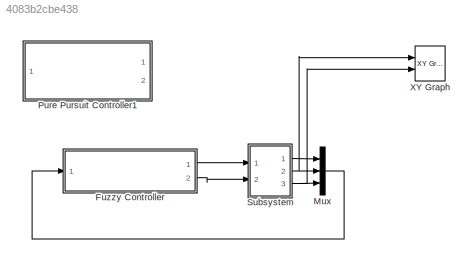
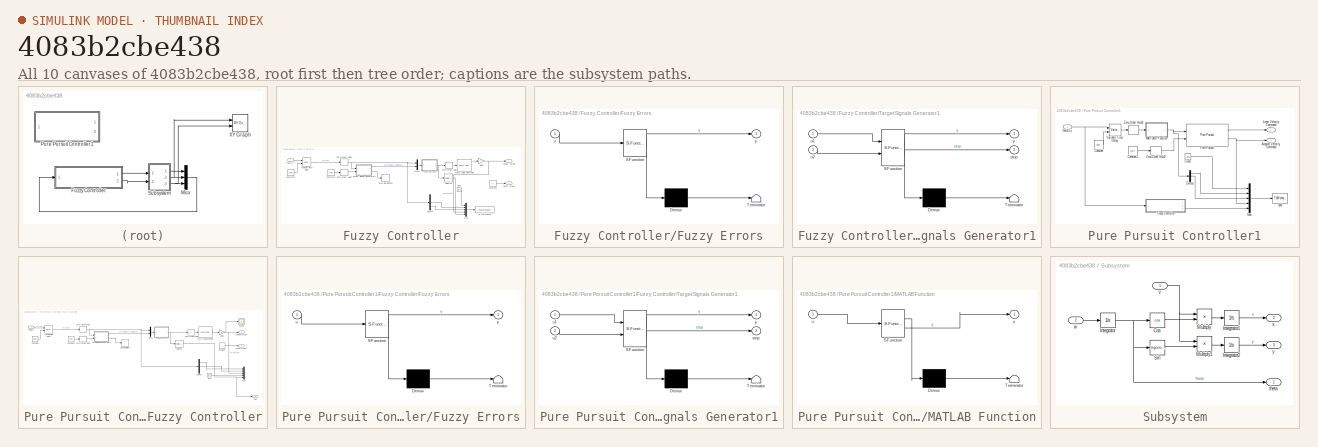
[diagram: thumbnail index - all 10 canvases of the model, root first then tree order]
MODEL slx_4083b2cbe438
KIND model
CONFIG AbsTol = auto
CONFIG EnableMultiTasking = off
CONFIG FixedStep = .0001
CONFIG MaxStep = auto
CONFIG MinStep = 1E-5
CONFIG RelTol = 1e-3
CONFIG SampleTimeConstraint = Unconstrained
CONFIG SolverName = FixedStepAuto
CONFIG StartTime = 0.0
CONFIG StopTime = 1000
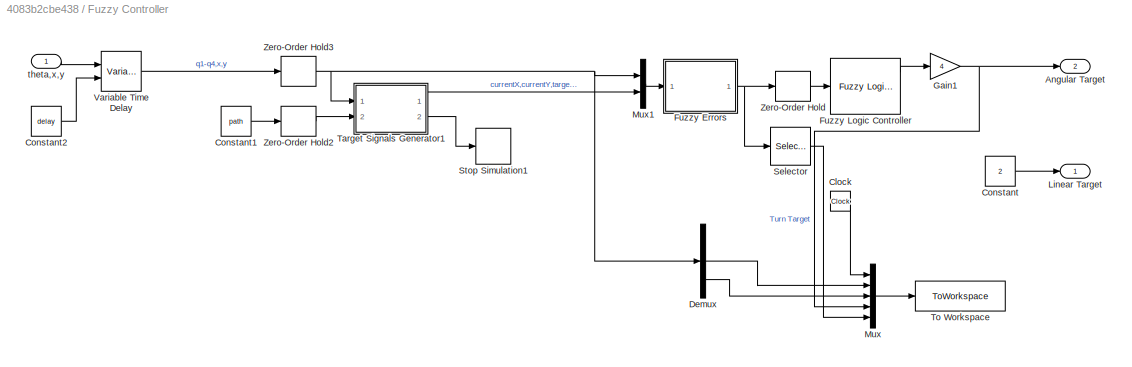
BLOCK [SubSystem] Fuzzy Controller
  Ports = [1, 2]
  RequestExecContextInheritance = off
BLOCK [Outport] Fuzzy Controller/ Angular Target
  Port = 2
  VectorParamsAs1DForOutWhenUnconnected = off
BLOCK [Clock] Fuzzy Controller/Clock
BLOCK [Constant] Fuzzy Controller/Constant
  Value = 2
BLOCK [Constant] Fuzzy Controller/Constant1
  Value = path
BLOCK [Constant] Fuzzy Controller/Constant2
  Value = delay
BLOCK [Demux] Fuzzy Controller/Demux
  Outputs = 3
  Ports = [1, 3]
BLOCK [SubSystem] Fuzzy Controller/Fuzzy Errors
  ErrorFcn = Stateflow.Translate.translate
  PermitHierarchicalResolution = ExplicitOnly
  Ports = [1, 1]
  RequestExecContextInheritance = off
  SFBlockType = MATLAB Function
  TreatAsAtomicUnit = on
BLOCK [Demux] Fuzzy Controller/Fuzzy Errors/ Demux 
  Outputs = 1
  Ports = [1, 1]
BLOCK [S-Function] Fuzzy Controller/Fuzzy Errors/ SFunction 
  EnableBusSupport = on
  FunctionName = sf_sfun
  PortCounts = [1 2]
  Ports = [1, 2]
  SFcnIsStateOwnerBlock = off
  SFunctionDeploymentMode = off
  Tag = Stateflow S-Function 1
BLOCK [Terminator] Fuzzy Controller/Fuzzy Errors/ Terminator 
BLOCK [Inport] Fuzzy Controller/Fuzzy Errors/u
BLOCK [Outport] Fuzzy Controller/Fuzzy Errors/y
  VectorParamsAs1DForOutWhenUnconnected = off
BLOCK [Reference] Fuzzy Controller/Fuzzy Logic Controller  REF=fuzblock/Fuzzy Logic   (lib defined in mdl_858b3b3e7478)
Controller
  Ports = [1, 3]
  SourceBlock = fuzblock/Fuzzy Logic \nController
  SourceProductBaseCode = FL
  SourceType = Fuzzy Inference System
BLOCK [Gain] Fuzzy Controller/Gain1
  Gain = 4
BLOCK [Outport] Fuzzy Controller/Linear Target
  VectorParamsAs1DForOutWhenUnconnected = off
BLOCK [Mux] Fuzzy Controller/Mux
  DisplayOption = bar
  Inputs = 5
  Ports = [5, 1]
BLOCK [Mux] Fuzzy Controller/Mux1
  DisplayOption = bar
  Inputs = 2
  Ports = [2, 1]
BLOCK [Selector] Fuzzy Controller/Selector
  IndexOptions = Index vector (dialog)
  Indices = [1]
  InputPortWidth = 5
  OutputSizes = 1
  Ports = [1, 1]
BLOCK [Stop] Fuzzy Controller/Stop Simulation1
BLOCK [SubSystem] Fuzzy Controller/Target Signals Generator1
  ErrorFcn = Stateflow.Translate.translate
  PermitHierarchicalResolution = ExplicitOnly
  Ports = [2, 2]
  RequestExecContextInheritance = off
  SFBlockType = MATLAB Function
  TreatAsAtomicUnit = on
BLOCK [Demux] Fuzzy Controller/Target Signals Generator1/ Demux 
  Outputs = 1
  Ports = [1, 1]
BLOCK [S-Function] Fuzzy Controller/Target Signals Generator1/ SFunction 
  EnableBusSupport = on
  FunctionName = sf_sfun
  PortCounts = [2 3]
  Ports = [2, 3]
  SFcnIsStateOwnerBlock = off
  SFunctionDeploymentMode = off
  Tag = Stateflow S-Function 3
BLOCK [Terminator] Fuzzy Controller/Target Signals Generator1/ Terminator 
BLOCK [Outport] Fuzzy Controller/Target Signals Generator1/stop
  Port = 2
  VectorParamsAs1DForOutWhenUnconnected = off
BLOCK [Inport] Fuzzy Controller/Target Signals Generator1/u1
BLOCK [Inport] Fuzzy Controller/Target Signals Generator1/u2
  Port = 2
BLOCK [Outport] Fuzzy Controller/Target Signals Generator1/y
  VectorParamsAs1DForOutWhenUnconnected = off
BLOCK [ToWorkspace] Fuzzy Controller/To Workspace
  FixptAsFi = on
  MaxDataPoints = inf
  Ports = [1]
  SampleTime = -1
  VariableName = output
BLOCK [VariableTransportDelay] Fuzzy Controller/Variable Time Delay
  MaximumDelay = 10
  Ports = [2, 1]
BLOCK [ZeroOrderHold] Fuzzy Controller/Zero-Order Hold
  SampleTime = .001
BLOCK [ZeroOrderHold] Fuzzy Controller/Zero-Order Hold2
  SampleTime = .001
BLOCK [ZeroOrderHold] Fuzzy Controller/Zero-Order Hold3
  SampleTime = .001
BLOCK [Inport] Fuzzy Controller/theta,x,y
BLOCK [Mux] Mux
  DisplayOption = bar
  Inputs = 3
  Ports = [3, 1]
BLOCK [SubSystem] Pure Pursuit Controller1
  Commented = on
  Ports = [1, 2]
  RequestExecContextInheritance = off
BLOCK [Outport] Pure Pursuit Controller1/Angular Velocity Command
  Port = 2
  VectorParamsAs1DForOutWhenUnconnected = off
BLOCK [Clock] Pure Pursuit Controller1/Clock
BLOCK [Constant] Pure Pursuit Controller1/Constant
  Value = delay
BLOCK [Constant] Pure Pursuit Controller1/Constant1
  Value = path
BLOCK [Demux] Pure Pursuit Controller1/Demux
  Outputs = 3
  Ports = [1, 3]
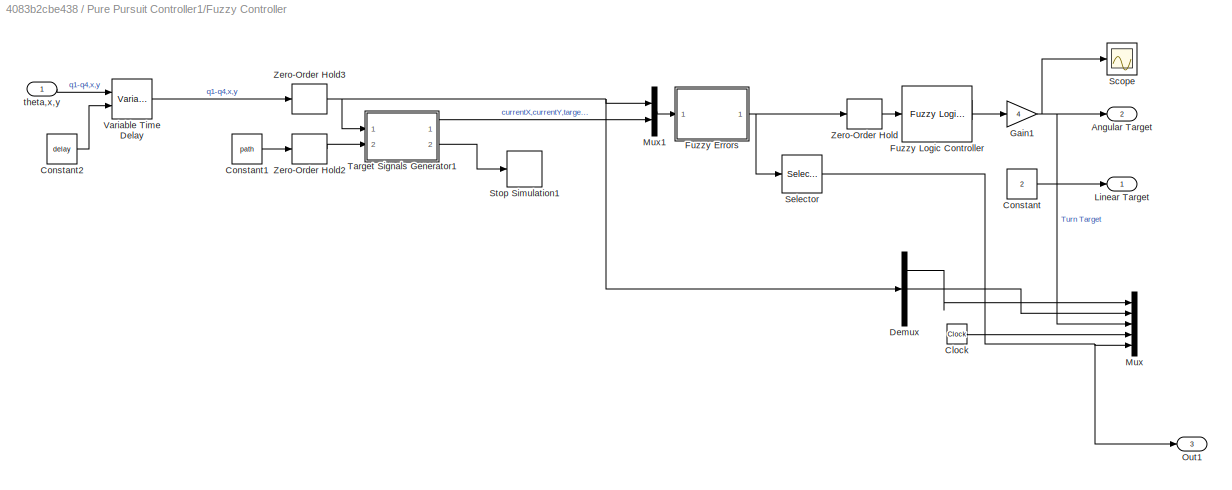
BLOCK [SubSystem] Pure Pursuit Controller1/Fuzzy Controller
  Ports = [1, 3]
  RequestExecContextInheritance = off
BLOCK [Outport] Pure Pursuit Controller1/Fuzzy Controller/ Angular Target
  Port = 2
  VectorParamsAs1DForOutWhenUnconnected = off
BLOCK [Clock] Pure Pursuit Controller1/Fuzzy Controller/Clock
BLOCK [Constant] Pure Pursuit Controller1/Fuzzy Controller/Constant
  Commented = on
  Value = 2
BLOCK [Constant] Pure Pursuit Controller1/Fuzzy Controller/Constant1
  Value = path
BLOCK [Constant] Pure Pursuit Controller1/Fuzzy Controller/Constant2
  Value = delay
BLOCK [Demux] Pure Pursuit Controller1/Fuzzy Controller/Demux
  Outputs = 3
  Ports = [1, 3]
BLOCK [SubSystem] Pure Pursuit Controller1/Fuzzy Controller/Fuzzy Errors
  ErrorFcn = Stateflow.Translate.translate
  PermitHierarchicalResolution = ExplicitOnly
  Ports = [1, 1]
  RequestExecContextInheritance = off
  SFBlockType = MATLAB Function
  TreatAsAtomicUnit = on
BLOCK [Demux] Pure Pursuit Controller1/Fuzzy Controller/Fuzzy Errors/ Demux 
  Outputs = 1
  Ports = [1, 1]
BLOCK [S-Function] Pure Pursuit Controller1/Fuzzy Controller/Fuzzy Errors/ SFunction 
  EnableBusSupport = on
  FunctionName = sf_sfun
  PortCounts = [1 2]
  Ports = [1, 2]
  SFcnIsStateOwnerBlock = off
  SFunctionDeploymentMode = off
  Tag = Stateflow S-Function 5
BLOCK [Terminator] Pure Pursuit Controller1/Fuzzy Controller/Fuzzy Errors/ Terminator 
BLOCK [Inport] Pure Pursuit Controller1/Fuzzy Controller/Fuzzy Errors/u
BLOCK [Outport] Pure Pursuit Controller1/Fuzzy Controller/Fuzzy Errors/y
  VectorParamsAs1DForOutWhenUnconnected = off
BLOCK [Reference] Pure Pursuit Controller1/Fuzzy Controller/Fuzzy Logic Controller  REF=fuzblock/Fuzzy Logic   (lib defined in mdl_858b3b3e7478)
Controller
  Commented = on
  Ports = [1, 3]
  SourceBlock = fuzblock/Fuzzy Logic \nController
  SourceProductBaseCode = FL
  SourceType = Fuzzy Inference System
BLOCK [Gain] Pure Pursuit Controller1/Fuzzy Controller/Gain1
  Commented = on
  Gain = 4
BLOCK [Outport] Pure Pursuit Controller1/Fuzzy Controller/Linear Target
  VectorParamsAs1DForOutWhenUnconnected = off
BLOCK [Mux] Pure Pursuit Controller1/Fuzzy Controller/Mux
  DisplayOption = bar
  Inputs = 5
  Ports = [5, 1]
BLOCK [Mux] Pure Pursuit Controller1/Fuzzy Controller/Mux1
  DisplayOption = bar
  Inputs = 2
  Ports = [2, 1]
BLOCK [Outport] Pure Pursuit Controller1/Fuzzy Controller/Out1
  Port = 3
BLOCK [Scope] Pure Pursuit Controller1/Fuzzy Controller/Scope
  Commented = on
  Floating = off
  NumInputPorts = 1
  Ports = [1]
  ScopeSpecificationString = Simulink.scopes.TimeScopeBlockCfg('CurrentConfiguration', extmgr.ConfigurationSet(extmgr.Configuration('Core','General UI',true),extmgr.Configuration('Core','Source UI',true),extmgr.Configuration('Sources','WiredSimulink',true,'DataLoggingVariableName','ScopeData1'),extmgr.Configuration('Visuals','Time Domain',true,'SerializedDisplays',{struct('MinYLimReal','-2.90872','MaxYLimReal','4.76763','YLab...<+1411ch>
BLOCK [Selector] Pure Pursuit Controller1/Fuzzy Controller/Selector
  IndexOptions = Index vector (dialog)
  Indices = [1]
  InputPortWidth = 5
  OutputSizes = 1
  Ports = [1, 1]
BLOCK [Stop] Pure Pursuit Controller1/Fuzzy Controller/Stop Simulation1
BLOCK [SubSystem] Pure Pursuit Controller1/Fuzzy Controller/Target Signals Generator1
  ErrorFcn = Stateflow.Translate.translate
  PermitHierarchicalResolution = ExplicitOnly
  Ports = [2, 2]
  RequestExecContextInheritance = off
  SFBlockType = MATLAB Function
  TreatAsAtomicUnit = on
BLOCK [Demux] Pure Pursuit Controller1/Fuzzy Controller/Target Signals Generator1/ Demux 
  Outputs = 1
  Ports = [1, 1]
BLOCK [S-Function] Pure Pursuit Controller1/Fuzzy Controller/Target Signals Generator1/ SFunction 
  EnableBusSupport = on
  FunctionName = sf_sfun
  PortCounts = [2 3]
  Ports = [2, 3]
  SFcnIsStateOwnerBlock = off
  SFunctionDeploymentMode = off
  Tag = Stateflow S-Function 6
BLOCK [Terminator] Pure Pursuit Controller1/Fuzzy Controller/Target Signals Generator1/ Terminator 
BLOCK [Outport] Pure Pursuit Controller1/Fuzzy Controller/Target Signals Generator1/stop
  Port = 2
  VectorParamsAs1DForOutWhenUnconnected = off
BLOCK [Inport] Pure Pursuit Controller1/Fuzzy Controller/Target Signals Generator1/u1
BLOCK [Inport] Pure Pursuit Controller1/Fuzzy Controller/Target Signals Generator1/u2
  Port = 2
BLOCK [Outport] Pure Pursuit Controller1/Fuzzy Controller/Target Signals Generator1/y
  VectorParamsAs1DForOutWhenUnconnected = off
BLOCK [VariableTransportDelay] Pure Pursuit Controller1/Fuzzy Controller/Variable Time Delay
  MaximumDelay = 10
  Ports = [2, 1]
BLOCK [ZeroOrderHold] Pure Pursuit Controller1/Fuzzy Controller/Zero-Order Hold
  Commented = on
  SampleTime = .001
BLOCK [ZeroOrderHold] Pure Pursuit Controller1/Fuzzy Controller/Zero-Order Hold2
  SampleTime = .001
BLOCK [ZeroOrderHold] Pure Pursuit Controller1/Fuzzy Controller/Zero-Order Hold3
  SampleTime = .001
BLOCK [Inport] Pure Pursuit Controller1/Fuzzy Controller/theta,x,y
BLOCK [Outport] Pure Pursuit Controller1/Linear Velocity Command
  VectorParamsAs1DForOutWhenUnconnected = off
BLOCK [SubSystem] Pure Pursuit Controller1/MATLAB Function
  ErrorFcn = Stateflow.Translate.translate
  PermitHierarchicalResolution = ExplicitOnly
  Ports = [1, 1]
  RequestExecContextInheritance = off
  SFBlockType = MATLAB Function
  TreatAsAtomicUnit = on
BLOCK [Demux] Pure Pursuit Controller1/MATLAB Function/ Demux 
  Outputs = 1
  Ports = [1, 1]
BLOCK [S-Function] Pure Pursuit Controller1/MATLAB Function/ SFunction 
  EnableBusSupport = on
  FunctionName = sf_sfun
  PortCounts = [1 2]
  Ports = [1, 2]
  SFcnIsStateOwnerBlock = off
  SFunctionDeploymentMode = off
  Tag = Stateflow S-Function 2
BLOCK [Terminator] Pure Pursuit Controller1/MATLAB Function/ Terminator 
BLOCK [Inport] Pure Pursuit Controller1/MATLAB Function/u
BLOCK [Outport] Pure Pursuit Controller1/MATLAB Function/y
BLOCK [Mux] Pure Pursuit Controller1/Mux
  DisplayOption = bar
  Inputs = 5
  Ports = [5, 1]
BLOCK [Reference] Pure Pursuit Controller1/Pure Pursuit  REF=robotalgslib/Pure Pursuit
  Ports = [2, 2]
  SourceBlock = robotalgslib/Pure Pursuit
  SourceProductBaseCode = NV,RO
  SourceType = nav.slalgs.internal.PurePursuit
BLOCK [VariableTransportDelay] Pure Pursuit Controller1/Variable Time Delay
  MaximumDelay = 10
  Ports = [2, 1]
BLOCK [ZeroOrderHold] Pure Pursuit Controller1/Zero-Order Hold2
  SampleTime = .001
BLOCK [ZeroOrderHold] Pure Pursuit Controller1/Zero-Order Hold3
  SampleTime = .001
BLOCK [ToWorkspace] Pure Pursuit Controller1/qout
  MaxDataPoints = inf
  Ports = [1]
  SampleTime = -1
  VariableName = output
BLOCK [Inport] Pure Pursuit Controller1/theta,x,y
BLOCK [SubSystem] Subsystem
  Ports = [2, 3]
  RequestExecContextInheritance = off
BLOCK [Trigonometry] Subsystem/Cos
  Operator = cos
  Ports = [1, 1]
BLOCK [Integrator] Subsystem/Integrator
  Ports = [1, 1]
BLOCK [Integrator] Subsystem/Integrator1
  Ports = [1, 1]
BLOCK [Integrator] Subsystem/Integrator2
  Ports = [1, 1]
BLOCK [Product] Subsystem/Multiply
  Ports = [2, 1]
BLOCK [Product] Subsystem/Multiply1
  Ports = [2, 1]
BLOCK [Trigonometry] Subsystem/Sin
  Ports = [1, 1]
BLOCK [Outport] Subsystem/theta
  VectorParamsAs1DForOutWhenUnconnected = off
BLOCK [Inport] Subsystem/v
BLOCK [Inport] Subsystem/w
  Port = 2
BLOCK [Outport] Subsystem/x
  Port = 2
  VectorParamsAs1DForOutWhenUnconnected = off
BLOCK [Outport] Subsystem/y
  Port = 3
  VectorParamsAs1DForOutWhenUnconnected = off
BLOCK [Reference] XY Graph  REF=simulink/Sinks/XY Graph
  Ports = [2]
  SourceBlock = simulink/Sinks/XY Graph
  SourceProductBaseCode = SL
  SourceType = XY scope.
LINE Fuzzy Controller/Clock:1 -> Fuzzy Controller/Mux:1
LINE Fuzzy Controller/Constant1:1 -> Fuzzy Controller/Zero-Order Hold2:1
LINE Fuzzy Controller/Constant2:1 -> Fuzzy Controller/Variable Time Delay:2
LINE Fuzzy Controller/Constant:1 -> Fuzzy Controller/Linear Target:1
LINE Fuzzy Controller/Demux:2 -> Fuzzy Controller/Mux:2
LINE Fuzzy Controller/Demux:3 -> Fuzzy Controller/Mux:3
NET Fuzzy Controller/Fuzzy Errors:1 -> Fuzzy Controller/Selector:1, Fuzzy Controller/Zero-Order Hold:1
LINE Fuzzy Controller/Fuzzy Logic Controller:1 -> Fuzzy Controller/Gain1:1
NET Fuzzy Controller/Gain1:1 -> Fuzzy Controller/ Angular Target:1, Fuzzy Controller/Mux:4
LINE Fuzzy Controller/Mux1:1 -> Fuzzy Controller/Fuzzy Errors:1
LINE Fuzzy Controller/Mux:1 -> Fuzzy Controller/To Workspace:1
LINE Fuzzy Controller/Selector:1 -> Fuzzy Controller/Mux:5
LINE Fuzzy Controller/Target Signals Generator1:1 -> Fuzzy Controller/Mux1:2
LINE Fuzzy Controller/Target Signals Generator1:2 -> Fuzzy Controller/Stop Simulation1:1
LINE Fuzzy Controller/Variable Time Delay:1 -> Fuzzy Controller/Zero-Order Hold3:1
LINE Fuzzy Controller/Zero-Order Hold2:1 -> Fuzzy Controller/Target Signals Generator1:2
NET Fuzzy Controller/Zero-Order Hold3:1 -> Fuzzy Controller/Demux:1, Fuzzy Controller/Mux1:1, Fuzzy Controller/Target Signals Generator1:1
LINE Fuzzy Controller/Zero-Order Hold:1 -> Fuzzy Controller/Fuzzy Logic Controller:1
LINE Fuzzy Controller/theta,x,y:1 -> Fuzzy Controller/Variable Time Delay:1
LINE Fuzzy Controller:1 -> Subsystem:1
LINE Fuzzy Controller:2 -> Subsystem:2
LINE Mux:1 -> Fuzzy Controller:1
LINE Pure Pursuit Controller1/Clock:1 -> Pure Pursuit Controller1/Mux:1
LINE Pure Pursuit Controller1/Constant1:1 -> Pure Pursuit Controller1/Zero-Order Hold2:1
LINE Pure Pursuit Controller1/Constant:1 -> Pure Pursuit Controller1/Variable Time Delay:2
LINE Pure Pursuit Controller1/Demux:1 -> Pure Pursuit Controller1/Mux:2
LINE Pure Pursuit Controller1/Demux:2 -> Pure Pursuit Controller1/Mux:3
LINE Pure Pursuit Controller1/Fuzzy Controller/Clock:1 -> Pure Pursuit Controller1/Fuzzy Controller/Mux:4
LINE Pure Pursuit Controller1/Fuzzy Controller/Constant1:1 -> Pure Pursuit Controller1/Fuzzy Controller/Zero-Order Hold2:1
LINE Pure Pursuit Controller1/Fuzzy Controller/Constant2:1 -> Pure Pursuit Controller1/Fuzzy Controller/Variable Time Delay:2
LINE Pure Pursuit Controller1/Fuzzy Controller/Constant:1 -> Pure Pursuit Controller1/Fuzzy Controller/Linear Target:1
LINE Pure Pursuit Controller1/Fuzzy Controller/Demux:1 -> Pure Pursuit Controller1/Fuzzy Controller/Mux:1
LINE Pure Pursuit Controller1/Fuzzy Controller/Demux:2 -> Pure Pursuit Controller1/Fuzzy Controller/Mux:2
NET Pure Pursuit Controller1/Fuzzy Controller/Fuzzy Errors:1 -> Pure Pursuit Controller1/Fuzzy Controller/Selector:1, Pure Pursuit Controller1/Fuzzy Controller/Zero-Order Hold:1
LINE Pure Pursuit Controller1/Fuzzy Controller/Fuzzy Logic Controller:1 -> Pure Pursuit Controller1/Fuzzy Controller/Gain1:1
NET Pure Pursuit Controller1/Fuzzy Controller/Gain1:1 -> Pure Pursuit Controller1/Fuzzy Controller/ Angular Target:1, Pure Pursuit Controller1/Fuzzy Controller/Mux:3, Pure Pursuit Controller1/Fuzzy Controller/Scope:1
LINE Pure Pursuit Controller1/Fuzzy Controller/Mux1:1 -> Pure Pursuit Controller1/Fuzzy Controller/Fuzzy Errors:1
NET Pure Pursuit Controller1/Fuzzy Controller/Selector:1 -> Pure Pursuit Controller1/Fuzzy Controller/Mux:5, Pure Pursuit Controller1/Fuzzy Controller/Out1:1
LINE Pure Pursuit Controller1/Fuzzy Controller/Target Signals Generator1:1 -> Pure Pursuit Controller1/Fuzzy Controller/Mux1:2
LINE Pure Pursuit Controller1/Fuzzy Controller/Target Signals Generator1:2 -> Pure Pursuit Controller1/Fuzzy Controller/Stop Simulation1:1
LINE Pure Pursuit Controller1/Fuzzy Controller/Variable Time Delay:1 -> Pure Pursuit Controller1/Fuzzy Controller/Zero-Order Hold3:1
LINE Pure Pursuit Controller1/Fuzzy Controller/Zero-Order Hold2:1 -> Pure Pursuit Controller1/Fuzzy Controller/Target Signals Generator1:2
NET Pure Pursuit Controller1/Fuzzy Controller/Zero-Order Hold3:1 -> Pure Pursuit Controller1/Fuzzy Controller/Demux:1, Pure Pursuit Controller1/Fuzzy Controller/Mux1:1, Pure Pursuit Controller1/Fuzzy Controller/Target Signals Generator1:1
LINE Pure Pursuit Controller1/Fuzzy Controller/Zero-Order Hold:1 -> Pure Pursuit Controller1/Fuzzy Controller/Fuzzy Logic Controller:1
LINE Pure Pursuit Controller1/Fuzzy Controller/theta,x,y:1 -> Pure Pursuit Controller1/Fuzzy Controller/Variable Time Delay:1
LINE Pure Pursuit Controller1/Fuzzy Controller:3 -> Pure Pursuit Controller1/Mux:5
NET Pure Pursuit Controller1/MATLAB Function:1 -> Pure Pursuit Controller1/Demux:1, Pure Pursuit Controller1/Pure Pursuit:1
LINE Pure Pursuit Controller1/Mux:1 -> Pure Pursuit Controller1/qout:1
LINE Pure Pursuit Controller1/Pure Pursuit:1 -> Pure Pursuit Controller1/Linear Velocity Command:1
NET Pure Pursuit Controller1/Pure Pursuit:2 -> Pure Pursuit Controller1/Angular Velocity Command:1, Pure Pursuit Controller1/Mux:4
LINE Pure Pursuit Controller1/Variable Time Delay:1 -> Pure Pursuit Controller1/Zero-Order Hold3:1
LINE Pure Pursuit Controller1/Zero-Order Hold2:1 -> Pure Pursuit Controller1/Pure Pursuit:2
LINE Pure Pursuit Controller1/Zero-Order Hold3:1 -> Pure Pursuit Controller1/MATLAB Function:1
NET Pure Pursuit Controller1/theta,x,y:1 -> Pure Pursuit Controller1/Fuzzy Controller:1, Pure Pursuit Controller1/Variable Time Delay:1
LINE Subsystem/Cos:1 -> Subsystem/Multiply:2
LINE Subsystem/Integrator1:1 -> Subsystem/x:1
LINE Subsystem/Integrator2:1 -> Subsystem/y:1
NET Subsystem/Integrator:1 -> Subsystem/Cos:1, Subsystem/Sin:1, Subsystem/theta:1
LINE Subsystem/Multiply1:1 -> Subsystem/Integrator2:1
LINE Subsystem/Multiply:1 -> Subsystem/Integrator1:1
LINE Subsystem/Sin:1 -> Subsystem/Multiply1:2
NET Subsystem/v:1 -> Subsystem/Multiply1:1, Subsystem/Multiply:1
LINE Subsystem/w:1 -> Subsystem/Integrator:1
LINE Subsystem:1 -> Mux:1
NET Subsystem:2 -> Mux:2, XY Graph:1
NET Subsystem:3 -> Mux:3, XY Graph:2
note: NET lines group one-source signal fan-out (src -> all destinations, sorted); 1:1 wires keep LINE
CHART Pure Pursuit Controller1/MATLAB Function states=1 transitions=1
  STATE_LABEL 'eML_blk_kernel()'
  STATE_LABEL 'SCRIPT:\nfunction y = fcn(u)\n%jackal dyanamic model\npos=[u(2) u(3)]; % [x,y]\n%q=[u(1) u(2) u(3) u(4)]; % orientation quaternion\n%currentAngle=atan2(2*(q(1)*q(4)+q(2)*q(3)),1-2*(q(3)^2+q(4)^2));% Angle robot is currently facing\ncurrentAngle=u(1);\ny = [pos currentAngle];\n'
CHART Fuzzy Controller/Target Signals Generator1 states=1 transitions=1
  STATE_LABEL 'eML_blk_kernel()'
  STATE_LABEL 'SCRIPT:\nfunction [y,stop] = fcn(u1,u2)\n\npersistent pathcount;\npersistent pathlength;\npersistent path; %error in code, initially used path but this is already a matlab function\npersistent pathPre;\n\nif isempty(pathcount)\n   pathcount=1;     \n   pathPre=u2;\n   [pathlength,~]=size(pathPre);  \n   path=[pathPre; pathPre(pathlength,1)+100 pathPre(pathlength,2)+100]; %sim takes multiple iterations to stop...<+1089ch>'
CHART Pure Pursuit Controller1/Fuzzy Controller/Fuzzy Errors states=1 transitions=1
  STATE_LABEL 'eML_blk_kernel()'
  STATE_LABEL 'SCRIPT:\nfunction y  = fcn(u)\n\n%jackal dyanamic model\npos=[u(2) u(3)]; % [x,y]\n%q=[u(1) u(2) u(3) u(4)]; % orientation quaternion\ncurrentAngle=u(1);% Angle robot is currently facing\n\ncurrentPoint=[u(4) u(5)];\ntarget=[u(6) u(7)];\nfuture=[u(8) u(9)];\n\nA = [(currentPoint(2)-target(2)), target(1)-currentPoint(1); target(1)-currentPoint(1), target(2)-currentPoint(2)];\nb = [ target(1)*currentPoint(2)-cur...<+1304ch>'
CHART Pure Pursuit Controller1/Fuzzy Controller/Target Signals Generator1 states=1 transitions=1
  STATE_LABEL 'eML_blk_kernel()'
  STATE_LABEL 'SCRIPT:\nfunction [y,stop] = fcn(u1,u2)\n\npersistent pathcount;\npersistent pathlength;\npersistent path; %error in code, initially used path but this is already a matlab function\npersistent pathPre;\n\nif isempty(pathcount)\n   pathcount=1;     \n   pathPre=u2;\n   [pathlength,~]=size(pathPre);  \n   path=[pathPre; pathPre(pathlength,1)+100 pathPre(pathlength,2)+100]; %sim takes multiple iterations to stop...<+1089ch>'
CHART Fuzzy Controller/Fuzzy Errors states=1 transitions=1
  STATE_LABEL 'eML_blk_kernel()'
  STATE_LABEL 'SCRIPT:\nfunction y  = fcn(u)\n\n%jackal dyanamic model\npos=[u(2) u(3)]; % [x,y]\n%q=[u(1) u(2) u(3) u(4)]; % orientation quaternion\n%currentAngle=atan2(2*(q(1)*q(4)+q(2)*q(3)),1-2*(q(3)^2+q(4)^2));% Angle robot is currently facing\ncurrentAngle=u(1);\n\n\ncurrentPoint=[u(4) u(5)];\ntarget=[u(6) u(7)];\nfuture=[u(8) u(9)];\n\nA = [(currentPoint(2)-target(2)), target(1)-currentPoint(1); target(1)-currentPoint(...<+1371ch>'
CHART  states=0 transitions=0
CHART  states=0 transitions=0
CHART  states=0 transitions=0
CHART  states=0 transitions=0
CHART  states=0 transitions=0
